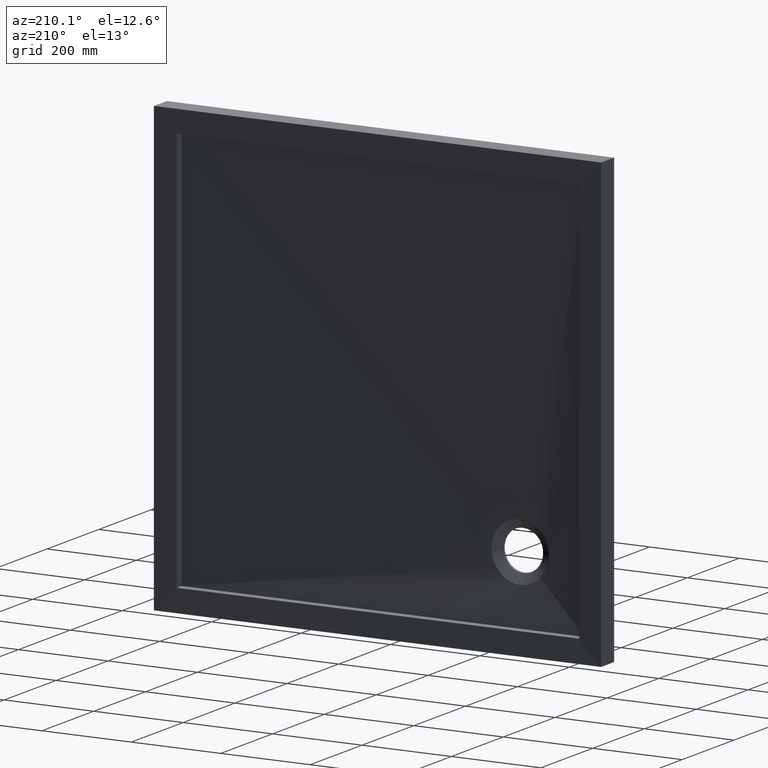
[diagram: clean part render]
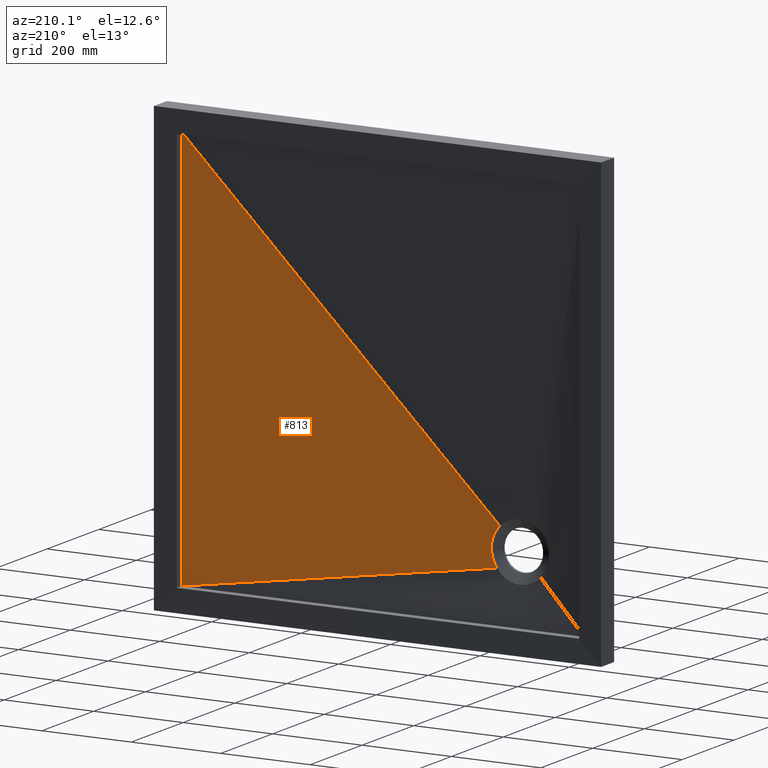
[diagram: same view with one face highlighted and labeled with its STEP entity id]
A machine part, auxiliary view. The second image highlights one B-rep face of the part: STEP entity #813.
In plain terms, the highlighted face is a freeform B-spline surface patch.
Its self-contained STEP definition (entity closure, byte-faithful):
#4 = VECTOR ( 'NONE', #292, 1000.000000000000000 ) ;
#32 = CARTESIAN_POINT ( 'NONE',  ( -237.8244328748318400, 17.25620286190386900, -317.1724094258306600 ) ) ;
#54 = ORIENTED_EDGE ( 'NONE', *, *, #674, .F. ) ;
#59 = CARTESIAN_POINT ( 'NONE',  ( -248.2853138542001300, 17.26308587154314400, -338.5603925686425600 ) ) ;
#65 = CARTESIAN_POINT ( 'NONE',  ( -259.7969942885579300, 16.99999999999999600, -268.4559292598893300 ) ) ;
#72 = CARTESIAN_POINT ( 'NONE',  ( -251.8542905364235500, 17.00000000000000700, -282.8422586982841300 ) ) ;
#76 = EDGE_LOOP ( 'NONE', ( #54, #391, #733, #148 ) ) ;
#84 = CARTESIAN_POINT ( 'NONE',  ( -256.1581470798482800, 16.99999999999999300, -326.2526570011330000 ) ) ;
#91 = CARTESIAN_POINT ( 'NONE',  ( -235.8835109046637800, 17.22515727262462100, -293.4541513688764700 ) ) ;
#96 = EDGE_CURVE ( 'NONE', #978, #911, #842, .T. ) ;
#100 = CARTESIAN_POINT ( 'NONE',  ( 450.0000000000001100, 28.99999999999947100, 150.0000000000000900 ) ) ;
#109 = CARTESIAN_POINT ( 'NONE',  ( -242.2615484731736900, 17.18839453221833900, -271.5072751055881200 ) ) ;
#123 = CARTESIAN_POINT ( 'NONE',  ( -249.3683784368046200, 17.00000000000000000, -292.9591620613797400 ) ) ;
#130 = CARTESIAN_POINT ( 'NONE',  ( -250.7959667893380800, 17.00000000000000400, -286.1400715441738500 ) ) ;
#141 = LINE ( 'NONE', #285, #4 ) ;
#147 = CARTESIAN_POINT ( 'NONE',  ( 450.0000000000002300, 29.00000000000000000, 450.0000000000001100 ) ) ;
#148 = ORIENTED_EDGE ( 'NONE', *, *, #815, .T. ) ;
#159 = CARTESIAN_POINT ( 'NONE',  ( 450.0000000000000600, 29.00000000000000400, 262.4999999999943700 ) ) ;
#161 = CARTESIAN_POINT ( 'NONE',  ( -249.3224298876400600, 17.16854212453320700, -260.1690332917901900 ) ) ;
#163 = CARTESIAN_POINT ( 'NONE',  ( 450.0000000000001100, 29.00000000000000400, 299.9999999999952800 ) ) ;
#164 = CARTESIAN_POINT ( 'NONE',  ( 450.0000000000000600, 29.00000000000000400, 187.4999999999928900 ) ) ;
#173 = CARTESIAN_POINT ( 'NONE',  ( 450.0000000000000600, 29.00000000000000400, 74.99999999999158700 ) ) ;
#183 = CARTESIAN_POINT ( 'NONE',  ( -259.7969942885579800, 17.00000000000000400, -331.5440707401106700 ) ) ;
#212 = CARTESIAN_POINT ( 'NONE',  ( 449.9999999999999400, 29.00000000000000400, -300.0000000000047700 ) ) ;
#222 = CARTESIAN_POINT ( 'NONE',  ( -246.0634872868258500, 17.26410555288595800, -335.4023289692718800 ) ) ;
#225 = CARTESIAN_POINT ( 'NONE',  ( -246.0515675921285200, 17.17679455513603100, -264.8539320149317300 ) ) ;
#227 = CARTESIAN_POINT ( 'NONE',  ( -236.2495236439392800, 17.22059589293281700, -290.5862222434552700 ) ) ;
#228 = CARTESIAN_POINT ( 'NONE',  ( -236.1134485862428400, 17.22212178853508000, -291.5381292579111800 ) ) ;
#235 = CARTESIAN_POINT ( 'NONE',  ( -263.9375541594860100, 17.00000000000000000, -336.0624458405139900 ) ) ;
#248 = CARTESIAN_POINT ( 'NONE',  ( -236.3631033013933800, 17.24929172797282500, -310.5958254319433000 ) ) ;
#259 = CARTESIAN_POINT ( 'NONE',  ( -238.5482252393765600, 17.20362283474932900, -280.3471520853560200 ) ) ;
#260 = CARTESIAN_POINT ( 'NONE',  ( -247.1474494514762100, 17.26371187411179200, -336.9998949458583900 ) ) ;
#285 = CARTESIAN_POINT ( 'NONE',  ( 93.03122292025695100, 23.00000000000000000, -393.0312229202569900 ) ) ;
#290 = CARTESIAN_POINT ( 'NONE',  ( -248.9999999999998900, 17.00000000000000700, -296.4791847198287700 ) ) ;
#292 = DIRECTION ( 'NONE',  ( -0.9873676604643323300, -0.01659586592208480600, 0.1575743643600921700 ) ) ;
#295 = CARTESIAN_POINT ( 'NONE',  ( 450.0000000000000600, 29.00000000000000400, 149.9999999999923500 ) ) ;
#299 = VERTEX_POINT ( 'NONE', #686 ) ;
#302 = B_SPLINE_CURVE_WITH_KNOTS ( 'NONE', 3,
 ( #717, #404, #161, #225, #497, #808, #731, #109, #496, #572, #259, #473, #527, #227, #228, #91, #974, #984, #982, #816, #248, #795, #857, #846, #32, #458, #418, #441, #975, #971, #222, #260, #840, #959 ),
 .UNSPECIFIED., .F., .F.,
 ( 4, 2, 2, 2, 2, 2, 2, 2, 2, 2, 2, 2, 2, 2, 2, 2, 4 ),
 ( 0.0000000000000000000, 0.01142698218799505900, 0.01714047328199263700, 0.01999721882899142500, 0.02285396437599021200, 0.03428094656398505300, 0.03999443765798248900, 0.04285118320498127600, 0.04570792875198006300, 0.05713491093997506000, 0.06284840203397247500, 0.06570514758097109600, 0.06856189312796971700, 0.07998887531596374200, 0.08570236640996067900, 0.08855911195695914700, 0.09141585750395761500 ),
 .UNSPECIFIED. ) ;
#331 = FACE_OUTER_BOUND ( 'NONE', #76, .T. ) ;
#391 = ORIENTED_EDGE ( 'NONE', *, *, #96, .F. ) ;
#404 = CARTESIAN_POINT ( 'NONE',  ( -251.7758116111455400, 17.16334237248184300, -257.2400854454937200 ) ) ;
#418 = CARTESIAN_POINT ( 'NONE',  ( -240.5477153084490300, 17.26252795493259400, -325.3216652400013800 ) ) ;
#433 = VECTOR ( 'NONE', #667, 1000.000000000000000 ) ;
#441 = CARTESIAN_POINT ( 'NONE',  ( -243.0963962095326600, 17.26410650772123700, -330.4493648792724800 ) ) ;
#444 = EDGE_CURVE ( 'NONE', #299, #978, #879, .T. ) ;
#450 = CARTESIAN_POINT ( 'NONE',  ( 450.0000000000000000, 29.00000000000000400, -150.0000000000074700 ) ) ;
#458 = CARTESIAN_POINT ( 'NONE',  ( -239.1615611745012300, 17.26028573888363800, -321.7729436222176100 ) ) ;
#472 = CARTESIAN_POINT ( 'NONE',  ( 450.0000000000002300, 29.00000000000000000, 450.0000000000001100 ) ) ;
#473 = CARTESIAN_POINT ( 'NONE',  ( -237.1161634278944100, 17.21290088844208200, -285.8805559388372300 ) ) ;
#496 = CARTESIAN_POINT ( 'NONE',  ( -241.8374977731892000, 17.18990264174938800, -272.3770810951771200 ) ) ;
#497 = CARTESIAN_POINT ( 'NONE',  ( -245.0299083382670600, 17.17961958177046700, -266.4644481838907400 ) ) ;
#503 = CARTESIAN_POINT ( 'NONE',  ( -254.5360379076521700, 17.00000000000000400, -276.6456518568105000 ) ) ;
#527 = CARTESIAN_POINT ( 'NONE',  ( -236.7198767912738600, 17.21599700670958900, -287.7484689678921100 ) ) ;
#529 = CARTESIAN_POINT ( 'NONE',  ( 450.0000000000000600, 29.00000000000000400, -75.00000000000828500 ) ) ;
#534 = CARTESIAN_POINT ( 'NONE',  ( 93.03122292025712200, 23.00000000000000000, 93.03122292025712200 ) ) ;
#545 = CARTESIAN_POINT ( 'NONE',  ( -254.5140105692795800, 17.15839273676478200, -254.5140105692794600 ) ) ;
#559 = CARTESIAN_POINT ( 'NONE',  ( -261.8125541594860100, 17.00000000000000400, -266.0625541594859600 ) ) ;
#572 = CARTESIAN_POINT ( 'NONE',  ( -239.8252077916753500, 17.19747687047297200, -276.7514196248657800 ) ) ;
#651 = CARTESIAN_POINT ( 'NONE',  ( 449.9999999999999400, 29.00000000000000400, -262.5000000000056300 ) ) ;
#654 = CARTESIAN_POINT ( 'NONE',  ( -256.1581470798481600, 16.99999999999999600, -273.7473429988669400 ) ) ;
#667 = DIRECTION ( 'NONE',  ( -0.7070568443483394900, -0.01188434770344730400, -0.7070568443483392600 ) ) ;
#674 = EDGE_CURVE ( 'NONE', #911, #831, #302, .T. ) ;
#675 = CARTESIAN_POINT ( 'NONE',  ( 449.9999999999998900, 29.00000000000000700, -375.0000000000026700 ) ) ;
#676 = CARTESIAN_POINT ( 'NONE',  ( 449.9999999999998900, 29.00000000000000000, -450.0000000000000000 ) ) ;
#686 = CARTESIAN_POINT ( 'NONE',  ( 449.9999999999998900, 29.00000000000000000, -450.0000000000000000 ) ) ;
#707 = CARTESIAN_POINT ( 'NONE',  ( -261.8125541594860700, 17.00000000000000400, -333.9374458405141000 ) ) ;
#717 = CARTESIAN_POINT ( 'NONE',  ( -254.5140105692795800, 17.15839273676478200, -254.5140105692794600 ) ) ;
#731 = CARTESIAN_POINT ( 'NONE',  ( -243.1432815940003100, 17.18542599809204000, -269.7970907410883100 ) ) ;
#732 = CARTESIAN_POINT ( 'NONE',  ( 450.0000000000002300, 29.00000000000000000, 450.0000000000001100 ) ) ;
#733 = ORIENTED_EDGE ( 'NONE', *, *, #444, .F. ) ;
#734 = CARTESIAN_POINT ( 'NONE',  ( 449.9999999999998900, 29.00000000000000000, -450.0000000000000000 ) ) ;
#757 = CARTESIAN_POINT ( 'NONE',  ( -248.9999999999998900, 17.00000000000000400, -303.5208152801714000 ) ) ;
#778 = CARTESIAN_POINT ( 'NONE',  ( 450.0000000000000000, 28.99999999999947100, -149.9999999999999700 ) ) ;
#780 = CARTESIAN_POINT ( 'NONE',  ( -249.3683784368046800, 17.00000000000000400, -307.0408379386203700 ) ) ;
#795 = CARTESIAN_POINT ( 'NONE',  ( -236.9158906401131300, 17.25244386754727800, -313.4258661501138500 ) ) ;
#797 = CARTESIAN_POINT ( 'NONE',  ( 450.0000000000000600, 29.00000000000000400, 37.49999999999133100 ) ) ;
#799 = CARTESIAN_POINT ( 'NONE',  ( 450.0000000000000600, 29.00000000000000400, -37.50000000000860500 ) ) ;
#808 = CARTESIAN_POINT ( 'NONE',  ( -243.6018639609882300, 17.18396109532095700, -268.9546173752133300 ) ) ;
#813 = ADVANCED_FACE ( 'NONE', ( #331 ), #937, .F. ) ;
#815 = EDGE_CURVE ( 'NONE', #299, #831, #141, .T. ) ;
#816 = CARTESIAN_POINT ( 'NONE',  ( -236.0814101221881700, 17.24698302981683200, -308.7042428930942600 ) ) ;
#830 = CARTESIAN_POINT ( 'NONE',  ( -250.7959667893380800, 17.00000000000000700, -313.8599284558260400 ) ) ;
#831 = VERTEX_POINT ( 'NONE', #59 ) ;
#839 = CARTESIAN_POINT ( 'NONE',  ( 449.9999999999998900, 29.00000000000000400, -412.5000000000014200 ) ) ;
#840 = CARTESIAN_POINT ( 'NONE',  ( -247.7073858502581900, 17.26343683784370600, -337.7863301345282100 ) ) ;
#842 = LINE ( 'NONE', #534, #433 ) ;
#846 = CARTESIAN_POINT ( 'NONE',  ( -237.5769275324213700, 17.25532522461080700, -316.2440118349869600 ) ) ;
#857 = CARTESIAN_POINT ( 'NONE',  ( -237.1224879456940800, 17.25344546960030800, -314.3703311346101300 ) ) ;
#863 = CARTESIAN_POINT ( 'NONE',  ( -254.5360379076522900, 17.00000000000000700, -323.3543481431895500 ) ) ;
#869 = CARTESIAN_POINT ( 'NONE',  ( 450.0000000000001700, 29.00000000000000400, 412.4999999999986900 ) ) ;
#879 = B_SPLINE_CURVE_WITH_KNOTS ( 'NONE', 3,
 ( #734, #778, #100, #732 ),
 .UNSPECIFIED., .F., .F.,
 ( 4, 4 ),
 ( 0.0000000000000000000, 1.000000000000000000 ),
 .UNSPECIFIED. ) ;
#911 = VERTEX_POINT ( 'NONE', #545 ) ;
#930 = CARTESIAN_POINT ( 'NONE',  ( -263.9375541594860100, 17.00000000000000000, -263.9375541594859000 ) ) ;
#937 = B_SPLINE_SURFACE_WITH_KNOTS ( 'NONE', 3, 1, ( 
 ( #676, #235 ),
 ( #839, #707 ),
 ( #675, #183 ),
 ( #212, #84 ),
 ( #651, #863 ),
 ( #962, #943 ),
 ( #450, #830 ),
 ( #529, #780 ),
 ( #799, #757 ),
 ( #797, #290 ),
 ( #173, #123 ),
 ( #295, #130 ),
 ( #164, #72 ),
 ( #159, #503 ),
 ( #163, #654 ),
 ( #961, #65 ),
 ( #869, #559 ),
 ( #147, #930 ) ),
 .UNSPECIFIED., .F., .F., .F.,
 ( 4, 2, 2, 2, 2, 2, 2, 2, 4 ),
 ( 2, 2 ),
 ( 0.0000000000000000000, 0.1250000000000001400, 0.2500000000000002800, 0.3750000000000004400, 0.5000000000000000000, 0.6250000000000002200, 0.7500000000000001100, 0.8750000000000001100, 1.000000000000000000 ),
 ( 0.0000000000000000000, 1.000000000000000000 ),
 .UNSPECIFIED. ) ;
#943 = CARTESIAN_POINT ( 'NONE',  ( -251.8542905364234900, 17.00000000000000700, -317.1577413017159900 ) ) ;
#959 = CARTESIAN_POINT ( 'NONE',  ( -248.2853138542001300, 17.26308587154314400, -338.5603925686425600 ) ) ;
#961 = CARTESIAN_POINT ( 'NONE',  ( 450.0000000000001700, 29.00000000000000400, 374.9999999999974400 ) ) ;
#962 = CARTESIAN_POINT ( 'NONE',  ( 449.9999999999999400, 29.00000000000000400, -187.5000000000069900 ) ) ;
#971 = CARTESIAN_POINT ( 'NONE',  ( -245.5387007022463600, 17.26422421731610200, -334.5899297449391800 ) ) ;
#974 = CARTESIAN_POINT ( 'NONE',  ( -235.7901450982781200, 17.22666222218758800, -294.4148231841641100 ) ) ;
#975 = CARTESIAN_POINT ( 'NONE',  ( -244.0246414649797400, 17.26434326692058000, -332.1258497738945700 ) ) ;
#978 = VERTEX_POINT ( 'NONE', #472 ) ;
#982 = CARTESIAN_POINT ( 'NONE',  ( -235.4901904650572800, 17.23960492912930700, -303.0152024605247900 ) ) ;
#984 = CARTESIAN_POINT ( 'NONE',  ( -235.4325507378515300, 17.23407177846465600, -299.2035628625850400 ) ) ;